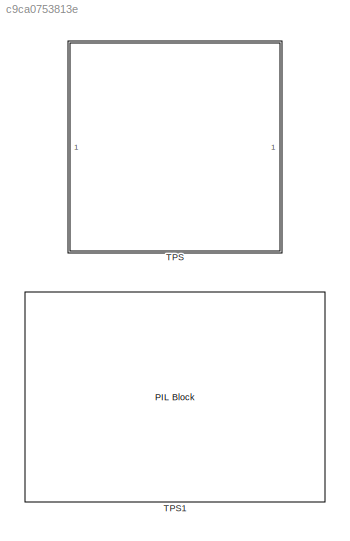
MODEL slx_c9ca0753813e
KIND model
CONFIG AbsTol = auto
CONFIG EnableMultiTasking = off
CONFIG FixedStep = 0.01
CONFIG MaxStep = auto
CONFIG MinStep = auto
CONFIG RelTol = 1e-3
CONFIG SampleTimeConstraint = Unconstrained
CONFIG SolverName = FixedStepDiscrete
CONFIG StartTime = 0.0
CONFIG StopTime = 10.0
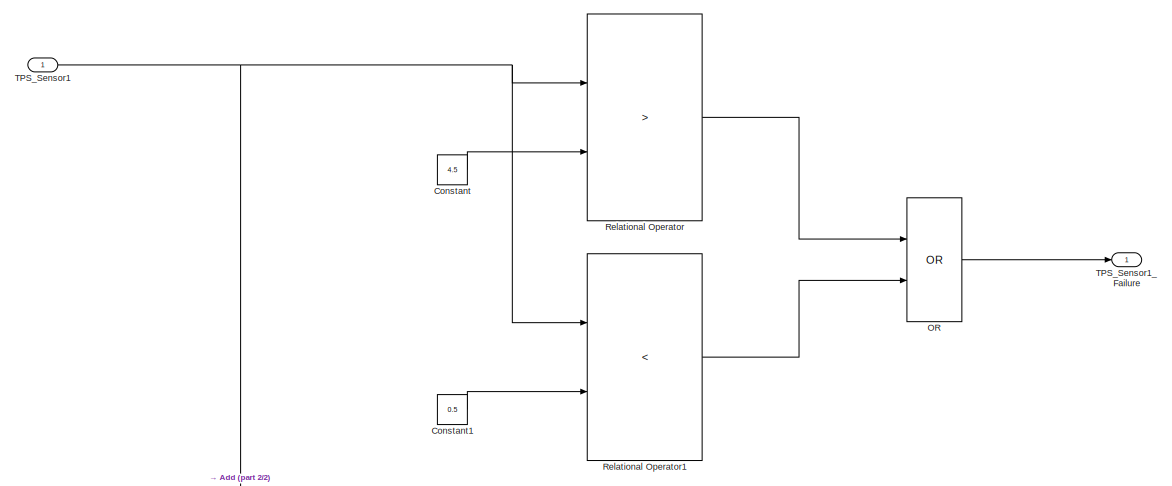
[diagram: TPS - part 1/2, full width, top band]
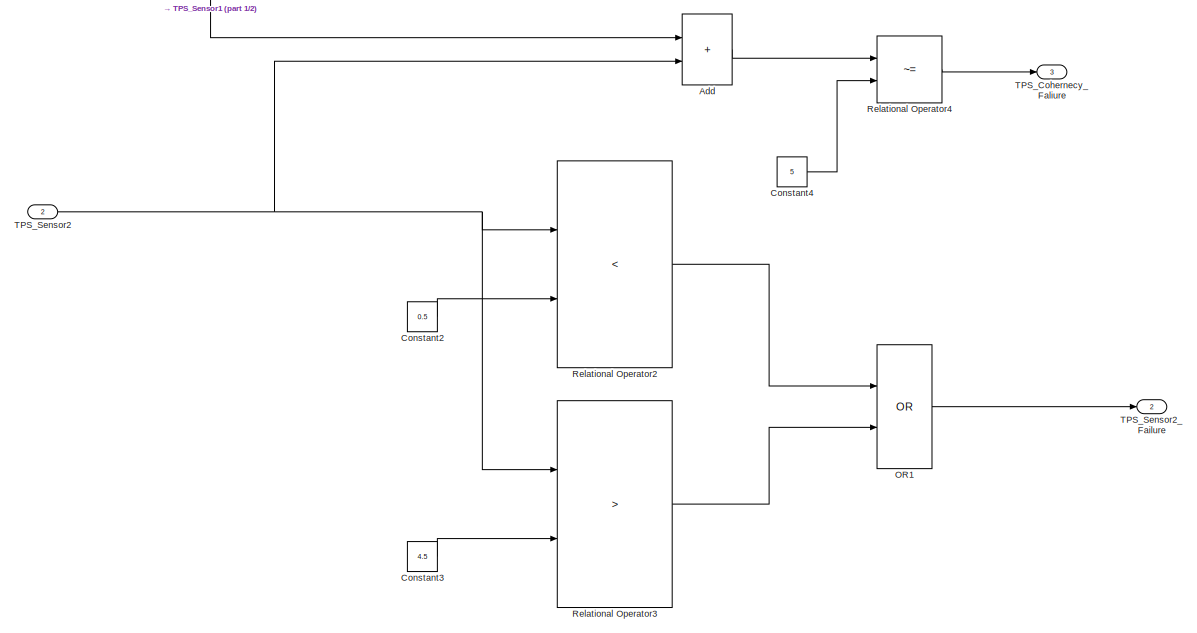
[diagram: TPS - part 2/2, full width, bottom band]
BLOCK [SubSystem] TPS
  TreatAsAtomicUnit = on
BLOCK [Sum] TPS/Add
  IconShape = rectangular
BLOCK [Constant] TPS/Constant
  Value = 4.5
BLOCK [Constant] TPS/Constant1
  Value = 0.5
BLOCK [Constant] TPS/Constant2
  Value = 0.5
BLOCK [Constant] TPS/Constant3
  Value = 4.5
BLOCK [Constant] TPS/Constant4
  Value = 5
BLOCK [Logic] TPS/OR
  AllPortsSameDT = off
  Operator = OR
  OutDataTypeStr = boolean
BLOCK [Logic] TPS/OR1
  AllPortsSameDT = off
  Operator = OR
  OutDataTypeStr = boolean
BLOCK [RelationalOperator] TPS/Relational Operator
  InputSameDT = off
  Operator = >
  OutDataTypeStr = boolean
  RndMeth = Simplest
BLOCK [RelationalOperator] TPS/Relational Operator1
  InputSameDT = off
  Operator = <
  OutDataTypeStr = boolean
  RndMeth = Simplest
BLOCK [RelationalOperator] TPS/Relational Operator2
  InputSameDT = off
  Operator = <
  OutDataTypeStr = boolean
  RndMeth = Simplest
BLOCK [RelationalOperator] TPS/Relational Operator3
  InputSameDT = off
  Operator = >
  OutDataTypeStr = boolean
  RndMeth = Simplest
BLOCK [RelationalOperator] TPS/Relational Operator4
  InputSameDT = off
  Operator = ~=
  OutDataTypeStr = boolean
  RndMeth = Simplest
BLOCK [Outport] TPS/TPS_Cohernecy_Faliure
  OutDataTypeStr = boolean
  Port = 3
BLOCK [Inport] TPS/TPS_Sensor1
  OutDataTypeStr = single
BLOCK [Outport] TPS/TPS_Sensor1_Failure
  OutDataTypeStr = boolean
BLOCK [Inport] TPS/TPS_Sensor2
  OutDataTypeStr = single
  Port = 2
BLOCK [Outport] TPS/TPS_Sensor2_Failure
  OutDataTypeStr = boolean
  Port = 2
BLOCK [Reference] TPS1  REF=pil_lib/PIL Block
  SourceBlock = pil_lib/PIL Block
  SourceType = XILBlock
  Tag = __SL_testing_harness_stub_
LINE TPS/Add:1 -> TPS/Relational Operator4:1
LINE TPS/Constant1:1 -> TPS/Relational Operator1:2
LINE TPS/Constant2:1 -> TPS/Relational Operator2:2
LINE TPS/Constant3:1 -> TPS/Relational Operator3:2
LINE TPS/Constant4:1 -> TPS/Relational Operator4:2
LINE TPS/Constant:1 -> TPS/Relational Operator:2
LINE TPS/OR1:1 -> TPS/TPS_Sensor2_Failure:1
LINE TPS/OR:1 -> TPS/TPS_Sensor1_Failure:1
LINE TPS/Relational Operator1:1 -> TPS/OR:2
LINE TPS/Relational Operator2:1 -> TPS/OR1:1
LINE TPS/Relational Operator3:1 -> TPS/OR1:2
LINE TPS/Relational Operator4:1 -> TPS/TPS_Cohernecy_Faliure:1
LINE TPS/Relational Operator:1 -> TPS/OR:1
NET TPS/TPS_Sensor1:1 -> TPS/Add:1, TPS/Relational Operator1:1, TPS/Relational Operator:1
NET TPS/TPS_Sensor2:1 -> TPS/Add:2, TPS/Relational Operator2:1, TPS/Relational Operator3:1
note: NET lines group one-source signal fan-out (src -> all destinations, sorted); 1:1 wires keep LINE
